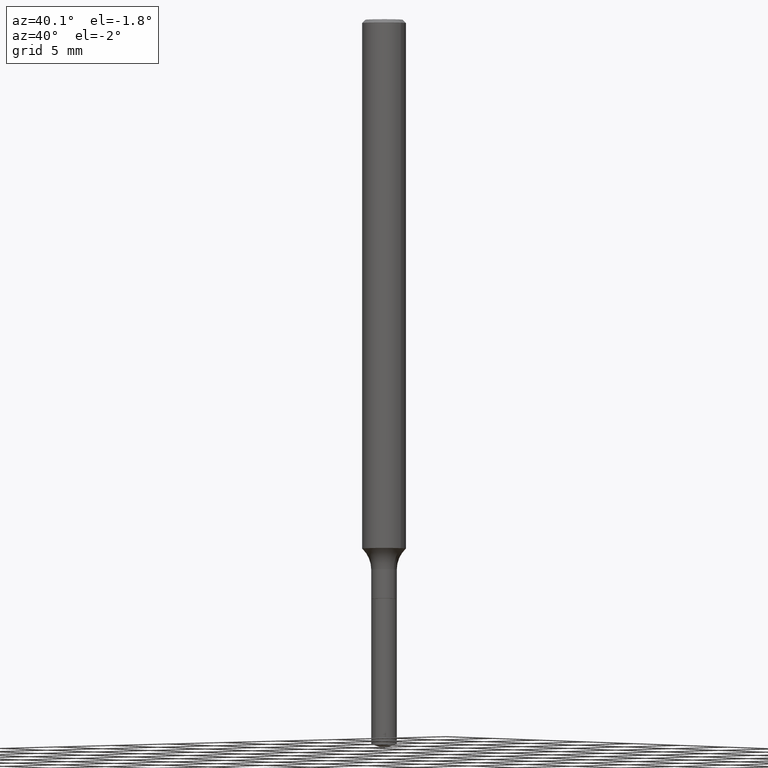
[diagram: clean part render]
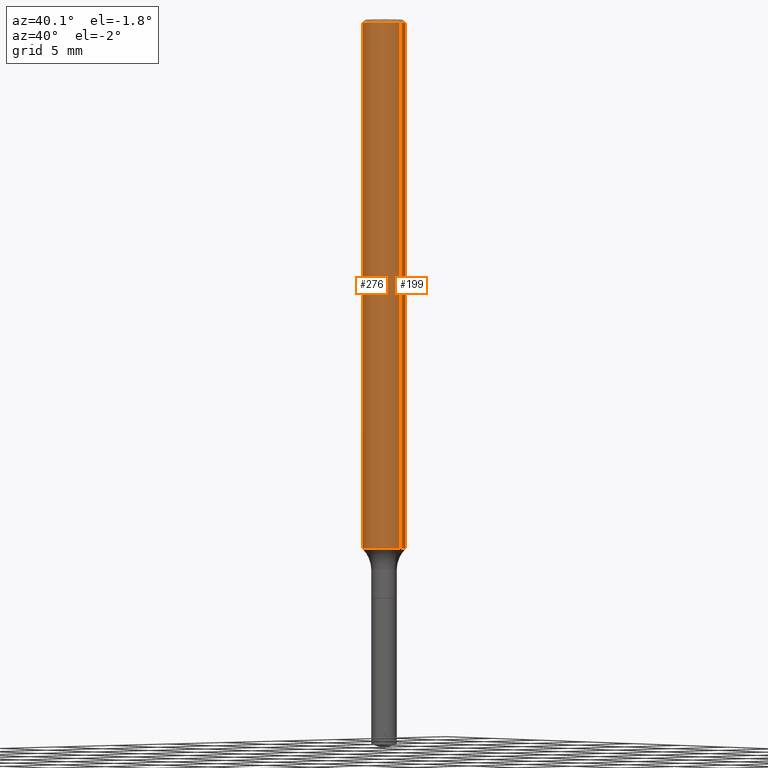
[diagram: same view with one multi-face feature highlighted, each face labeled with its STEP entity id]
A machine part, auxiliary view. The highlighted faces form ONE feature: a constant-radius fillet chain: 2 tangent blend faces with common blend radius 1.4999 mm. The faces share edges in the B-rep.
Their STEP definitions:
[1] entity #276 (Cylinder):
#1 = DIRECTION ( 'NONE',  ( -2.445468806185136597E-29, 3.491481338843145583E-15, 1.000000000000000000 ) ) ;
#3 = VECTOR ( 'NONE', #132, 39.37007874015748143 ) ;
#29 = CARTESIAN_POINT ( 'NONE',  ( 0.05905000000000008159, -4.123439461173746736E-16, 2.879382386107504424E-30 ) ) ;
#51 = ORIENTED_EDGE ( 'NONE', *, *, #106, .T. ) ;
#68 = VERTEX_POINT ( 'NONE', #434 ) ;
#105 = CARTESIAN_POINT ( 'NONE',  ( -0.05905000000000019261, -4.569560883002769734E-15, -1.428945448730994050 ) ) ;
#106 = EDGE_CURVE ( 'NONE', #342, #320, #484, .T. ) ;
#118 = DIRECTION ( 'NONE',  ( 1.000000000000000000, -6.982962677686267499E-15, 0.000000000000000000 ) ) ;
#132 = DIRECTION ( 'NONE',  ( -2.445468806185136877E-29, 3.491481338843145188E-15, 1.000000000000000000 ) ) ;
#139 = AXIS2_PLACEMENT_3D ( 'NONE', #344, #1, #118 ) ;
#142 = FACE_OUTER_BOUND ( 'NONE', #303, .T. ) ;
#182 = DIRECTION ( 'NONE',  ( -2.445468806185136877E-29, 3.491481338843145188E-15, 1.000000000000000000 ) ) ;
#245 = AXIS2_PLACEMENT_3D ( 'NONE', #328, #329, #472 ) ;
#269 = ORIENTED_EDGE ( 'NONE', *, *, #356, .T. ) ;
#276 = ADVANCED_FACE ( 'NONE', ( #142 ), #397, .T. ) ;
#284 = CARTESIAN_POINT ( 'NONE',  ( 0.05905000000000019261, -5.401480314586486513E-15, -1.428945448730994050 ) ) ;
#303 = EDGE_LOOP ( 'NONE', ( #422, #51, #269, #327 ) ) ;
#306 = LINE ( 'NONE', #452, #444 ) ;
#320 = VERTEX_POINT ( 'NONE', #284 ) ;
#321 = LINE ( 'NONE', #29, #3 ) ;
#327 = ORIENTED_EDGE ( 'NONE', *, *, #415, .F. ) ;
#328 = CARTESIAN_POINT ( 'NONE',  ( 0.000000000000000000, 0.000000000000000000, 0.000000000000000000 ) ) ;
#329 = DIRECTION ( 'NONE',  ( -2.445468806185136597E-29, 3.491481338843145583E-15, 1.000000000000000000 ) ) ;
#341 = CARTESIAN_POINT ( 'NONE',  ( 2.166073995078497058E-31, -3.092579595880333965E-17, -0.008857500000000051096 ) ) ;
#342 = VERTEX_POINT ( 'NONE', #105 ) ;
#344 = CARTESIAN_POINT ( 'NONE',  ( 3.494441520611868455E-29, -4.989136368469110804E-15, -1.428945448730994050 ) ) ;
#352 = AXIS2_PLACEMENT_3D ( 'NONE', #341, #411, #448 ) ;
#356 = EDGE_CURVE ( 'NONE', #320, #425, #321, .T. ) ;
#397 = CYLINDRICAL_SURFACE ( 'NONE', #245, 0.05905000000000008159 ) ;
#404 = CIRCLE ( 'NONE', #352, 0.05904999999999999832 ) ;
#411 = DIRECTION ( 'NONE',  ( -2.445468806185136597E-29, 3.491481338843145583E-15, 1.000000000000000000 ) ) ;
#415 = EDGE_CURVE ( 'NONE', #68, #425, #404, .T. ) ;
#422 = ORIENTED_EDGE ( 'NONE', *, *, #451, .F. ) ;
#425 = VERTEX_POINT ( 'NONE', #487 ) ;
#434 = CARTESIAN_POINT ( 'NONE',  ( -0.05904999999999999832, -2.090455596747615684E-15, -0.008857500000000051096 ) ) ;
#444 = VECTOR ( 'NONE', #182, 39.37007874015748143 ) ;
#448 = DIRECTION ( 'NONE',  ( 1.000000000000000000, -6.982962677686266711E-15, 0.000000000000000000 ) ) ;
#451 = EDGE_CURVE ( 'NONE', #342, #68, #306, .T. ) ;
#452 = CARTESIAN_POINT ( 'NONE',  ( -0.05905000000000008159, 4.195754854663397395E-16, -2.904631170795525745E-30 ) ) ;
#472 = DIRECTION ( 'NONE',  ( 1.000000000000000000, -6.982962677686267499E-15, 4.876176775795936353E-29 ) ) ;
#484 = CIRCLE ( 'NONE', #139, 0.05905000000000017873 ) ;
#487 = CARTESIAN_POINT ( 'NONE',  ( 0.05904999999999999832, -4.432697420761773785E-16, -0.008857500000000051096 ) ) ;
[2] entity #199 (Cylinder):
#3 = VECTOR ( 'NONE', #132, 39.37007874015748143 ) ;
#13 = EDGE_CURVE ( 'NONE', #425, #68, #102, .T. ) ;
#15 = CARTESIAN_POINT ( 'NONE',  ( 2.166073995078497058E-31, -3.092579595880333965E-17, -0.008857500000000051096 ) ) ;
#29 = CARTESIAN_POINT ( 'NONE',  ( 0.05905000000000008159, -4.123439461173746736E-16, 2.879382386107504424E-30 ) ) ;
#60 = CARTESIAN_POINT ( 'NONE',  ( 3.494441520611868455E-29, -4.989136368469110804E-15, -1.428945448730994050 ) ) ;
#62 = DIRECTION ( 'NONE',  ( -2.445468806185136597E-29, 3.491481338843145583E-15, 1.000000000000000000 ) ) ;
#68 = VERTEX_POINT ( 'NONE', #434 ) ;
#84 = FACE_OUTER_BOUND ( 'NONE', #353, .T. ) ;
#100 = DIRECTION ( 'NONE',  ( 1.000000000000000000, -6.982962677686266711E-15, 0.000000000000000000 ) ) ;
#102 = CIRCLE ( 'NONE', #350, 0.05904999999999999832 ) ;
#105 = CARTESIAN_POINT ( 'NONE',  ( -0.05905000000000019261, -4.569560883002769734E-15, -1.428945448730994050 ) ) ;
#123 = CYLINDRICAL_SURFACE ( 'NONE', #209, 0.05905000000000008159 ) ;
#128 = CIRCLE ( 'NONE', #396, 0.05905000000000017873 ) ;
#132 = DIRECTION ( 'NONE',  ( -2.445468806185136877E-29, 3.491481338843145188E-15, 1.000000000000000000 ) ) ;
#135 = DIRECTION ( 'NONE',  ( 1.000000000000000000, -6.982962677686267499E-15, 4.876176775795936353E-29 ) ) ;
#147 = ORIENTED_EDGE ( 'NONE', *, *, #13, .F. ) ;
#177 = CARTESIAN_POINT ( 'NONE',  ( 0.000000000000000000, 0.000000000000000000, 0.000000000000000000 ) ) ;
#182 = DIRECTION ( 'NONE',  ( -2.445468806185136877E-29, 3.491481338843145188E-15, 1.000000000000000000 ) ) ;
#199 = ADVANCED_FACE ( 'NONE', ( #84 ), #123, .T. ) ;
#201 = ORIENTED_EDGE ( 'NONE', *, *, #356, .F. ) ;
#209 = AXIS2_PLACEMENT_3D ( 'NONE', #177, #334, #135 ) ;
#225 = ORIENTED_EDGE ( 'NONE', *, *, #451, .T. ) ;
#258 = EDGE_CURVE ( 'NONE', #320, #342, #128, .T. ) ;
#284 = CARTESIAN_POINT ( 'NONE',  ( 0.05905000000000019261, -5.401480314586486513E-15, -1.428945448730994050 ) ) ;
#306 = LINE ( 'NONE', #452, #444 ) ;
#320 = VERTEX_POINT ( 'NONE', #284 ) ;
#321 = LINE ( 'NONE', #29, #3 ) ;
#332 = DIRECTION ( 'NONE',  ( 1.000000000000000000, -6.982962677686267499E-15, 0.000000000000000000 ) ) ;
#334 = DIRECTION ( 'NONE',  ( -2.445468806185136597E-29, 3.491481338843145583E-15, 1.000000000000000000 ) ) ;
#342 = VERTEX_POINT ( 'NONE', #105 ) ;
#350 = AXIS2_PLACEMENT_3D ( 'NONE', #15, #429, #100 ) ;
#353 = EDGE_LOOP ( 'NONE', ( #462, #225, #147, #201 ) ) ;
#356 = EDGE_CURVE ( 'NONE', #320, #425, #321, .T. ) ;
#396 = AXIS2_PLACEMENT_3D ( 'NONE', #60, #62, #332 ) ;
#425 = VERTEX_POINT ( 'NONE', #487 ) ;
#429 = DIRECTION ( 'NONE',  ( -2.445468806185136597E-29, 3.491481338843145583E-15, 1.000000000000000000 ) ) ;
#434 = CARTESIAN_POINT ( 'NONE',  ( -0.05904999999999999832, -2.090455596747615684E-15, -0.008857500000000051096 ) ) ;
#444 = VECTOR ( 'NONE', #182, 39.37007874015748143 ) ;
#451 = EDGE_CURVE ( 'NONE', #342, #68, #306, .T. ) ;
#452 = CARTESIAN_POINT ( 'NONE',  ( -0.05905000000000008159, 4.195754854663397395E-16, -2.904631170795525745E-30 ) ) ;
#462 = ORIENTED_EDGE ( 'NONE', *, *, #258, .T. ) ;
#487 = CARTESIAN_POINT ( 'NONE',  ( 0.05904999999999999832, -4.432697420761773785E-16, -0.008857500000000051096 ) ) ;